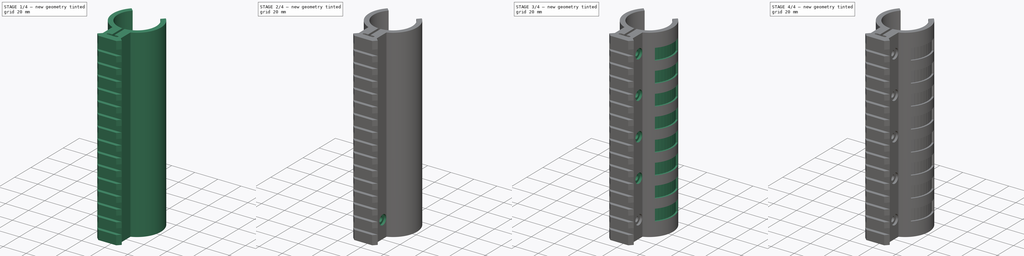
[diagram: build sequence overview — one tinted view per stage of 4, left to right]
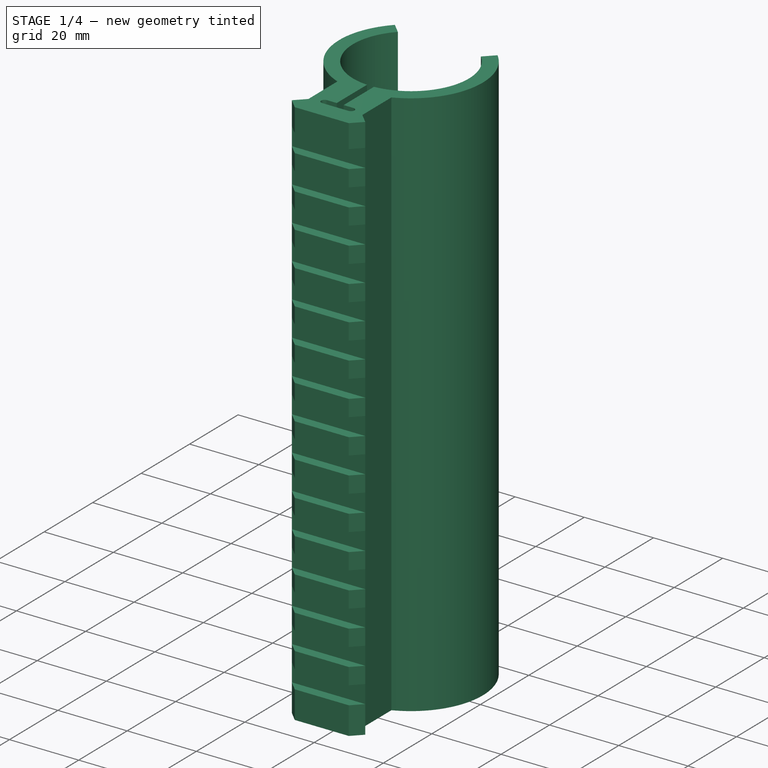
[diagram: stage 1 of 4 — iso view after this stage's code; geometry added in this stage tinted green]
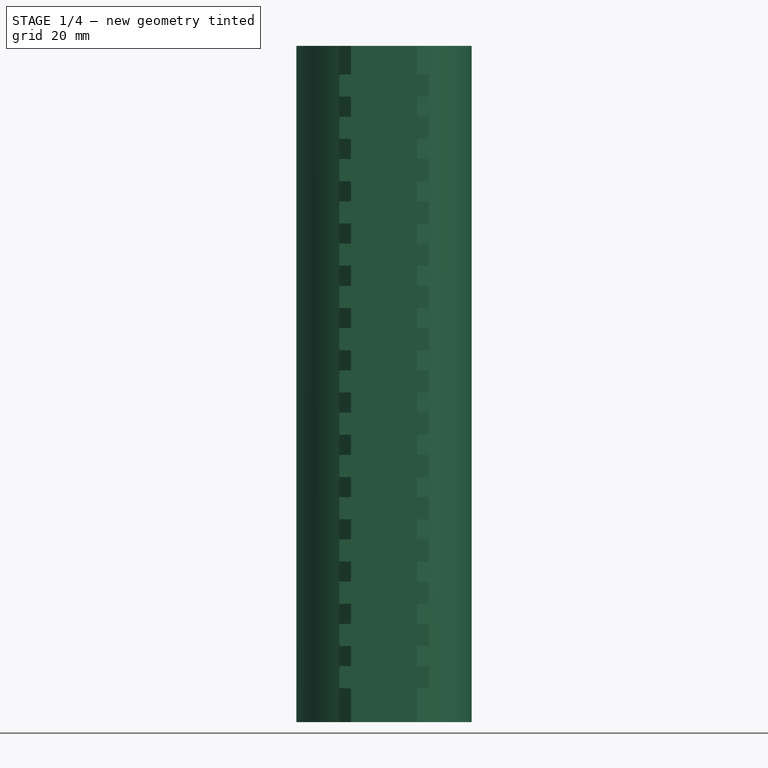
[diagram: stage 1 of 4 — front view after this stage's code; geometry added in this stage tinted green]
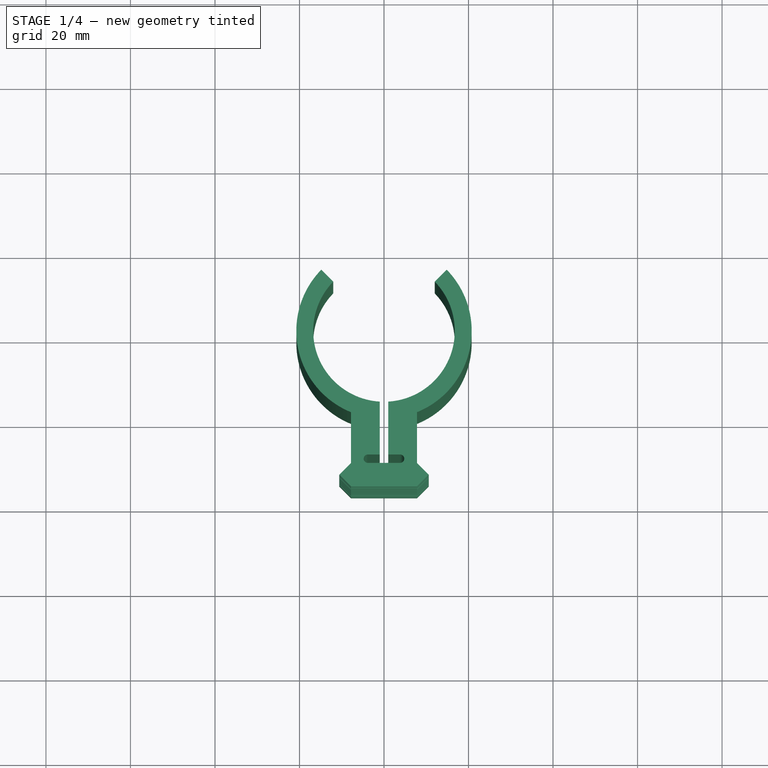
[diagram: stage 1 of 4 — top view after this stage's code; geometry added in this stage tinted green]
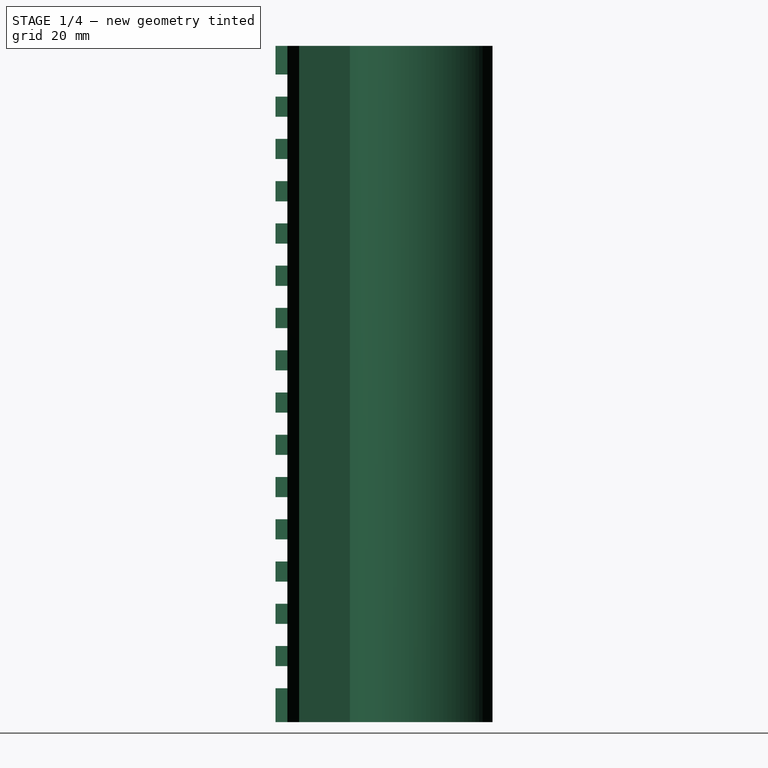
[diagram: stage 1 of 4 — right view after this stage's code; geometry added in this stage tinted green]
FCSTD DOCUMENT  (FreeCAD 0.21R33694 (Git))
Label: handguard_350
License: All rights reserved
LicenseURL: http://en.wikipedia.org/wiki/All_rights_reserved
objects: Sketcher::SketchObject×7, PartDesign::Pocket×6, PartDesign::Plane×2, PartDesign::PolarPattern×2, Spreadsheet::Sheet×1, PartDesign::Pad×1, PartDesign::LinearPattern×1, PartDesign::Body×1
note: 27 computed .brp shape members not serialized (recipe doc carries the construction recipe); baked Part::Feature solids carry a one-line shape summary decoded from their .brp

FEATURE [Spreadsheet::Sheet] Spreadsheet
  cells = A1='Внутренний диаметр; B1=33.5; A2='Толщина стенки цевья; B2=4; A3='Ширина паза в месте стягивания; B3=2; A4='Ширина паза для пропуска корпуса модератора; B4=24; A5='Высота опоры крепления планки; B5=12; A6='Длина цевья; B6=160; A7='Ширина вивера; B7=21.2; A8='Ширина опоры вивера; B8=15.6; A9='Глубина паза вивера; B9=2.8; A10='Ширина паза вивера; B10=5.23; A11='Шаг пазов; B11=10; A12='Отступ первого паза от края; B12=8; A13='Количество пазов; B13==floor((B6 - 2 * B12) / B11); A14='Диаметр отверстия для стяжки; B14=4.5; A15='Расстояние отверстия для стяжки от цевья; B15=4.5; A16='Расстояние отверстия для стажки от торца; B16=15; A17='Число отверстий для стяжки; B17=5; A18='Диапазон отверстий для стяжки; B18==B6 - 2 * B16; A19='Диаметр потая головки болта M4; B19=8.5; A20='Глубина потая головки болта M4; B20=2; A21='Размер потая под гайку М4; B21=7.3; C21='Потай под гайку М4; D21=3; A22='Глубина декоративного паза; B22=2.5; A23='Ширина декоративного паза; B23=10; A24='Отступ декоративного паза от края; B24=12
FEATURE [Sketcher::SketchObject] Sketch
  FullyConstrained = true
  MapMode = 5
  Support = -> [XY_Plane]
  expr: Constraints[12] = Spreadsheet.B1
  expr: Constraints[13] = Spreadsheet.B1 + 2 * Spreadsheet.B2
  expr: Constraints[21] = Spreadsheet.B4
  expr: Constraints[22] = Spreadsheet.B5
  expr: Constraints[29] = Spreadsheet.B7
  expr: Constraints[30] = Spreadsheet.B8
  expr: Constraints[34] = Spreadsheet.B8
  expr: Constraints[36] = Spreadsheet.B3
  sketch-geometry (20):
    g0: LineSegment StartX=-1 StartY=-16.7201 StartZ=0 EndX=-1 EndY=-29.2282 EndZ=0
    g1: LineSegment StartX=1 StartY=-29.2282 StartZ=0 EndX=1 EndY=-16.7201 EndZ=0
    g2: LineSegment StartX=-7.8 StartY=-19.2282 StartZ=0 EndX=-7.8 EndY=-31.2282 EndZ=0
    g3: LineSegment StartX=7.8 StartY=-31.2282 StartZ=0 EndX=7.8 EndY=-19.2282 EndZ=0
    g4: ArcOfCircle CenterX=0 CenterY=0 CenterZ=0 NormalX=0 NormalY=0 NormalZ=1 AngleXU=0 Radius=16.75 StartAngle=2.36945 EndAngle=4.65265
    g5: ArcOfCircle CenterX=0 CenterY=0 CenterZ=0 NormalX=0 NormalY=0 NormalZ=1 AngleXU=0 Radius=20.75 StartAngle=2.3669 EndAngle=4.32702
    g6: ArcOfCircle CenterX=0 CenterY=0 CenterZ=0 NormalX=0 NormalY=0 NormalZ=1 AngleXU=0 Radius=16.75 StartAngle=4.77213 EndAngle=7.05533
    g7: ArcOfCircle CenterX=0 CenterY=0 CenterZ=0 NormalX=0 NormalY=0 NormalZ=1 AngleXU=0 Radius=20.75 StartAngle=5.09776 EndAngle=7.05788
    g8: LineSegment StartX=-12 StartY=11.686 StartZ=0 EndX=-14.8286 EndY=14.5146 EndZ=0
    g9: LineSegment StartX=12 StartY=11.686 StartZ=0 EndX=14.8286 EndY=14.5146 EndZ=0
    g10: LineSegment StartX=-7.8 StartY=-31.2282 StartZ=0 EndX=-10.6 EndY=-34.0282 EndZ=0
    g11: LineSegment StartX=-10.6 StartY=-34.0282 StartZ=0 EndX=-7.8 EndY=-36.8282 EndZ=0
    g12: LineSegment StartX=-7.8 StartY=-36.8282 StartZ=0 EndX=7.8 EndY=-36.8282 EndZ=0
    g13: LineSegment StartX=7.8 StartY=-36.8282 StartZ=0 EndX=10.6 EndY=-34.0282 EndZ=0
    g14: LineSegment StartX=10.6 StartY=-34.0282 StartZ=0 EndX=7.8 EndY=-31.2282 EndZ=0
    g15: LineSegment StartX=1 StartY=-29.2282 StartZ=0 EndX=3.8 EndY=-29.2282 EndZ=0
    g16: LineSegment StartX=-1 StartY=-29.2282 StartZ=0 EndX=-3.8 EndY=-29.2282 EndZ=0
    g17: LineSegment StartX=-3.8 StartY=-31.2282 StartZ=0 EndX=3.8 EndY=-31.2282 EndZ=0
    g18: ArcOfCircle CenterX=3.8 CenterY=-30.2282 CenterZ=0 NormalX=0 NormalY=0 NormalZ=1 AngleXU=0 Radius=1 StartAngle=4.71239 EndAngle=7.85398
    g19: ArcOfCircle CenterX=-3.8 CenterY=-30.2282 CenterZ=0 NormalX=0 NormalY=0 NormalZ=1 AngleXU=0 Radius=1 StartAngle=1.5708 EndAngle=4.71239
  constraints (57):
    c: Vertical(g0)
    c: Vertical(g2)
    c: Vertical(g3)
    c: Equal(g3,g2)
    c: Coincident(g4,g-1)
    c: Coincident(g4,g0)
    c: Coincident(g5,g4)
    c: Coincident(g5,g2)
    c: Coincident(g6,g4)
    c: Coincident(g6,g1)
    c: Coincident(g7,g4)
    c: Coincident(g7,g3)
    c: Diameter(g6) = 33.5
    c: Diameter(g7) = 41.5
    c: Horizontal(g4,g6)
    c: Horizontal(g5,g7)
    c: Coincident(g8,g4)
    c: Coincident(g8,g5)
    c: Coincident(g9,g6)
    c: Coincident(g9,g7)
    c: Angle(g9,g8) = 1.5708
    c: DistanceX(g4,g6) = 24
    c: DistanceY(g2,g2) = 12
    c: Coincident(g11,g10)
    c: Coincident(g11,g12)
    c: Coincident(g13,g14)
    c: Coincident(g13,g12)
    c: Angle(g14,g13) = 1.5708
    c: Symmetric(g11,g12,g-2)
    c: DistanceX(g10,g13) = 21.2
    c: DistanceX(g2,g3) = 15.6
    c: Coincident(g14,g3)
    c: Coincident(g10,g2)
    c: Symmetric(g13,g10,g-2)
    c: DistanceX(g12,g12) = 15.6
    c: Equal(g14,g13)
    c: DistanceX(g0,g1) = 2
    c: Symmetric(g3,g2,g-2)
    c: Symmetric(g0,g1,g-2)
    c: Coincident(g15,g1)
    c: Horizontal(g15)
    c: Coincident(g16,g0)
    c: Horizontal(g16)
    c: Equal(g16,g15)
    c: Horizontal(g17)
    c: Vertical(g17,g15)
    c: Vertical(g17,g16)
    c: Coincident(g18,g17)
    c: Coincident(g18,g15)
    c: Coincident(g19,g16)
    c: Coincident(g19,g17)
    c: Vertical(g17,g19)
    c: Vertical(g17,g18)
    c: Horizontal(g17,g3)
    c: Diameter(g18) = 2
    c: DistanceX(g17,g3) = 4
    c: Symmetric(g0,g1,g-2)
FEATURE [PartDesign::Pad] Pad
  Direction = (0,0,1)
  Length = 160
  Length2 = 10
  Profile = -> Sketch
  ReferenceAxis = -> Sketch [N_Axis]
  Type = 0
  expr: Length = Spreadsheet.B6
FEATURE [Sketcher::SketchObject] Sketch001
  ExternalGeometry = -> [Pad]
  FullyConstrained = true
  MapMode = 5
  Placement = pos=(0,0,0) rot=(0.57735,0.57735,0.57735;2.0944rad)
  Support = -> [YZ_Plane]
  expr: Constraints[207] = Spreadsheet.B12
  expr: Constraints[22] = Spreadsheet.B11
  expr: Constraints[8] = Spreadsheet.B9
  expr: Constraints[9] = Spreadsheet.B10
  sketch-geometry (74):
    g0: LineSegment StartX=-36.8282 StartY=8 StartZ=0 EndX=-34.0282 EndY=8 EndZ=0
    g1: LineSegment StartX=-34.0282 StartY=8 StartZ=0 EndX=-34.0282 EndY=13.23 EndZ=0
    g2: LineSegment StartX=-34.0282 StartY=13.23 StartZ=0 EndX=-36.8282 EndY=13.23 EndZ=0
    g3: LineSegment StartX=-36.8282 StartY=13.23 StartZ=0 EndX=-36.8282 EndY=8 EndZ=0
    g4: LineSegment StartX=-36.8282 StartY=18 StartZ=0 EndX=-34.0282 EndY=18 EndZ=0
    g5: LineSegment StartX=-34.0282 StartY=18 StartZ=0 EndX=-34.0282 EndY=23.23 EndZ=0
    g6: LineSegment StartX=-34.0282 StartY=23.23 StartZ=0 EndX=-36.8282 EndY=23.23 EndZ=0
    g7: LineSegment StartX=-36.8282 StartY=23.23 StartZ=0 EndX=-36.8282 EndY=18 EndZ=0
    g8: LineSegment StartX=-36.8282 StartY=8 StartZ=0 EndX=-36.8282 EndY=18 EndZ=0
    g9: LineSegment StartX=-36.8282 StartY=28 StartZ=0 EndX=-34.0282 EndY=28 EndZ=0
    g10: LineSegment StartX=-34.0282 StartY=28 StartZ=0 EndX=-34.0282 EndY=33.23 EndZ=0
    g11: LineSegment StartX=-34.0282 StartY=33.23 StartZ=0 EndX=-36.8282 EndY=33.23 EndZ=0
    g12: LineSegment StartX=-36.8282 StartY=33.23 StartZ=0 EndX=-36.8282 EndY=28 EndZ=0
    g13: LineSegment StartX=-36.8282 StartY=18 StartZ=0 EndX=-36.8282 EndY=28 EndZ=0
    g14: LineSegment StartX=-36.8282 StartY=38 StartZ=0 EndX=-34.0282 EndY=38 EndZ=0
    g15: LineSegment StartX=-34.0282 StartY=38 StartZ=0 EndX=-34.0282 EndY=43.23 EndZ=0
    g16: LineSegment StartX=-34.0282 StartY=43.23 StartZ=0 EndX=-36.8282 EndY=43.23 EndZ=0
    g17: LineSegment StartX=-36.8282 StartY=43.23 StartZ=0 EndX=-36.8282 EndY=38 EndZ=0
    g18: LineSegment StartX=-36.8282 StartY=28 StartZ=0 EndX=-36.8282 EndY=38 EndZ=0
    g19: LineSegment StartX=-36.8282 StartY=48 StartZ=0 EndX=-34.0282 EndY=48 EndZ=0
    g20: LineSegment StartX=-34.0282 StartY=48 StartZ=0 EndX=-34.0282 EndY=53.23 EndZ=0
    g21: LineSegment StartX=-34.0282 StartY=53.23 StartZ=0 EndX=-36.8282 EndY=53.23 EndZ=0
    g22: LineSegment StartX=-36.8282 StartY=53.23 StartZ=0 EndX=-36.8282 EndY=48 EndZ=0
    g23: LineSegment StartX=-36.8282 StartY=38 StartZ=0 EndX=-36.8282 EndY=48 EndZ=0
    g24: LineSegment StartX=-36.8282 StartY=58 StartZ=0 EndX=-34.0282 EndY=58 EndZ=0
    g25: LineSegment StartX=-34.0282 StartY=58 StartZ=0 EndX=-34.0282 EndY=63.23 EndZ=0
    g26: LineSegment StartX=-34.0282 StartY=63.23 StartZ=0 EndX=-36.8282 EndY=63.23 EndZ=0
    g27: LineSegment StartX=-36.8282 StartY=63.23 StartZ=0 EndX=-36.8282 EndY=58 EndZ=0
    g28: LineSegment StartX=-36.8282 StartY=48 StartZ=0 EndX=-36.8282 EndY=58 EndZ=0
    g29: LineSegment StartX=-36.8282 StartY=68 StartZ=0 EndX=-34.0282 EndY=68 EndZ=0
    g30: LineSegment StartX=-34.0282 StartY=68 StartZ=0 EndX=-34.0282 EndY=73.23 EndZ=0
    g31: LineSegment StartX=-34.0282 StartY=73.23 StartZ=0 EndX=-36.8282 EndY=73.23 EndZ=0
    g32: LineSegment StartX=-36.8282 StartY=73.23 StartZ=0 EndX=-36.8282 EndY=68 EndZ=0
    g33: LineSegment StartX=-36.8282 StartY=58 StartZ=0 EndX=-36.8282 EndY=68 EndZ=0
    g34: LineSegment StartX=-36.8282 StartY=78 StartZ=0 EndX=-34.0282 EndY=78 EndZ=0
    g35: LineSegment StartX=-34.0282 StartY=78 StartZ=0 EndX=-34.0282 EndY=83.23 EndZ=0
    g36: LineSegment StartX=-34.0282 StartY=83.23 StartZ=0 EndX=-36.8282 EndY=83.23 EndZ=0
    g37: LineSegment StartX=-36.8282 StartY=83.23 StartZ=0 EndX=-36.8282 EndY=78 EndZ=0
    g38: LineSegment StartX=-36.8282 StartY=68 StartZ=0 EndX=-36.8282 EndY=78 EndZ=0
    g39: LineSegment StartX=-36.8282 StartY=88 StartZ=0 EndX=-34.0282 EndY=88 EndZ=0
    g40: LineSegment StartX=-34.0282 StartY=88 StartZ=0 EndX=-34.0282 EndY=93.23 EndZ=0
    g41: LineSegment StartX=-34.0282 StartY=93.23 StartZ=0 EndX=-36.8282 EndY=93.23 EndZ=0
    g42: LineSegment StartX=-36.8282 StartY=93.23 StartZ=0 EndX=-36.8282 EndY=88 EndZ=0
    g43: LineSegment StartX=-36.8282 StartY=78 StartZ=0 EndX=-36.8282 EndY=88 EndZ=0
    g44: LineSegment StartX=-36.8282 StartY=98 StartZ=0 EndX=-34.0282 EndY=98 EndZ=0
    g45: LineSegment StartX=-34.0282 StartY=98 StartZ=0 EndX=-34.0282 EndY=103.23 EndZ=0
    g46: LineSegment StartX=-34.0282 StartY=103.23 StartZ=0 EndX=-36.8282 EndY=103.23 EndZ=0
    g47: LineSegment StartX=-36.8282 StartY=103.23 StartZ=0 EndX=-36.8282 EndY=98 EndZ=0
    g48: LineSegment StartX=-36.8282 StartY=88 StartZ=0 EndX=-36.8282 EndY=98 EndZ=0
    g49: LineSegment StartX=-36.8282 StartY=108 StartZ=0 EndX=-34.0282 EndY=108 EndZ=0
    g50: LineSegment StartX=-34.0282 StartY=108 StartZ=0 EndX=-34.0282 EndY=113.23 EndZ=0
    g51: LineSegment StartX=-34.0282 StartY=113.23 StartZ=0 EndX=-36.8282 EndY=113.23 EndZ=0
    g52: LineSegment StartX=-36.8282 StartY=113.23 StartZ=0 EndX=-36.8282 EndY=108 EndZ=0
    g53: LineSegment StartX=-36.8282 StartY=98 StartZ=0 EndX=-36.8282 EndY=108 EndZ=0
    g54: LineSegment StartX=-36.8282 StartY=118 StartZ=0 EndX=-34.0282 EndY=118 EndZ=0
    g55: LineSegment StartX=-34.0282 StartY=118 StartZ=0 EndX=-34.0282 EndY=123.23 EndZ=0
    g56: LineSegment StartX=-34.0282 StartY=123.23 StartZ=0 EndX=-36.8282 EndY=123.23 EndZ=0
    g57: LineSegment StartX=-36.8282 StartY=123.23 StartZ=0 EndX=-36.8282 EndY=118 EndZ=0
    g58: LineSegment StartX=-36.8282 StartY=108 StartZ=0 EndX=-36.8282 EndY=118 EndZ=0
    g59: LineSegment StartX=-36.8282 StartY=128 StartZ=0 EndX=-34.0282 EndY=128 EndZ=0
    g60: LineSegment StartX=-34.0282 StartY=128 StartZ=0 EndX=-34.0282 EndY=133.23 EndZ=0
    g61: LineSegment StartX=-34.0282 StartY=133.23 StartZ=0 EndX=-36.8282 EndY=133.23 EndZ=0
    g62: LineSegment StartX=-36.8282 StartY=133.23 StartZ=0 EndX=-36.8282 EndY=128 EndZ=0
    g63: LineSegment StartX=-36.8282 StartY=118 StartZ=0 EndX=-36.8282 EndY=128 EndZ=0
    g64: LineSegment StartX=-36.8282 StartY=138 StartZ=0 EndX=-34.0282 EndY=138 EndZ=0
    g65: LineSegment StartX=-34.0282 StartY=138 StartZ=0 EndX=-34.0282 EndY=143.23 EndZ=0
    g66: LineSegment StartX=-34.0282 StartY=143.23 StartZ=0 EndX=-36.8282 EndY=143.23 EndZ=0
    g67: LineSegment StartX=-36.8282 StartY=143.23 StartZ=0 EndX=-36.8282 EndY=138 EndZ=0
    g68: LineSegment StartX=-36.8282 StartY=128 StartZ=0 EndX=-36.8282 EndY=138 EndZ=0
    g69: LineSegment StartX=-36.8282 StartY=148 StartZ=0 EndX=-34.0282 EndY=148 EndZ=0
    g70: LineSegment StartX=-34.0282 StartY=148 StartZ=0 EndX=-34.0282 EndY=153.23 EndZ=0
    g71: LineSegment StartX=-34.0282 StartY=153.23 StartZ=0 EndX=-36.8282 EndY=153.23 EndZ=0
    g72: LineSegment StartX=-36.8282 StartY=153.23 StartZ=0 EndX=-36.8282 EndY=148 EndZ=0
    g73: LineSegment StartX=-36.8282 StartY=138 StartZ=0 EndX=-36.8282 EndY=148 EndZ=0
  constraints (208):
    c: Coincident(g0,g1)
    c: Coincident(g1,g2)
    c: Coincident(g2,g3)
    c: Coincident(g3,g0)
    c: Horizontal(g0)
    c: Horizontal(g2)
    c: Vertical(g1)
    c: Vertical(g3)
    c: DistanceX(g0,g0) = 2.8
    c: DistanceY(g1,g1) = 5.23
    c: Coincident(g4,g5)
    c: Coincident(g5,g6)
    c: Coincident(g6,g7)
    c: Coincident(g7,g4)
    c: Horizontal(g4)
    c: Horizontal(g6)
    c: Vertical(g5)
    c: Vertical(g7)
    c: Equal(g0,g4) = 2.8
    c: Equal(g1,g5) = 5.23
    c: Coincident(g0,g8)
    c: Coincident(g4,g8)
    c: Distance(g8) = 10
    c: Angle(g8) = 1.5708
    c: Coincident(g9,g10)
    c: Coincident(g10,g11)
    c: Coincident(g11,g12)
    c: Coincident(g12,g9)
    c: Horizontal(g9)
    c: Horizontal(g11)
    c: Vertical(g10)
    c: Vertical(g12)
    c: Equal(g0,g9) = 2.8
    c: Equal(g1,g10) = 5.23
    c: Coincident(g4,g13)
    c: Coincident(g9,g13)
    c: Equal(g8,g13)
    c: Parallel(g13,g8)
    c: Coincident(g14,g15)
    c: Coincident(g15,g16)
    c: Coincident(g16,g17)
    c: Coincident(g17,g14)
    c: Horizontal(g14)
    c: Horizontal(g16)
    c: Vertical(g15)
    c: Vertical(g17)
    c: Equal(g0,g14) = 2.8
    c: Equal(g1,g15) = 5.23
    c: Coincident(g9,g18)
    c: Coincident(g14,g18)
    c: Equal(g8,g18)
    c: Parallel(g18,g8)
    c: Coincident(g19,g20)
    c: Coincident(g20,g21)
    c: Coincident(g21,g22)
    c: Coincident(g22,g19)
    c: Horizontal(g19)
    c: Horizontal(g21)
    c: Vertical(g20)
    c: Vertical(g22)
    c: Equal(g0,g19) = 2.8
    c: Equal(g1,g20) = 5.23
    c: Coincident(g14,g23)
    c: Coincident(g19,g23)
    c: Equal(g8,g23)
    c: Parallel(g23,g8)
    c: Coincident(g24,g25)
    c: Coincident(g25,g26)
    c: Coincident(g26,g27)
    c: Coincident(g27,g24)
    c: Horizontal(g24)
    c: Horizontal(g26)
    c: Vertical(g25)
    c: Vertical(g27)
    c: Equal(g0,g24) = 2.8
    c: Equal(g1,g25) = 5.23
    c: Coincident(g19,g28)
    c: Coincident(g24,g28)
    c: Equal(g8,g28)
    c: Parallel(g28,g8)
    c: Coincident(g29,g30)
    c: Coincident(g30,g31)
    c: Coincident(g31,g32)
    c: Coincident(g32,g29)
    c: Horizontal(g29)
    c: Horizontal(g31)
    c: Vertical(g30)
    c: Vertical(g32)
    c: Equal(g0,g29) = 2.8
    c: Equal(g1,g30) = 5.23
    c: Coincident(g24,g33)
    c: Coincident(g29,g33)
    c: Equal(g8,g33)
    c: Parallel(g33,g8)
    c: Coincident(g34,g35)
    c: Coincident(g35,g36)
    c: Coincident(g36,g37)
    c: Coincident(g37,g34)
    c: Horizontal(g34)
    c: Horizontal(g36)
    c: Vertical(g35)
    c: Vertical(g37)
    c: Equal(g0,g34) = 2.8
    c: Equal(g1,g35) = 5.23
    c: Coincident(g29,g38)
    c: Coincident(g34,g38)
    c: Equal(g8,g38)
    c: Parallel(g38,g8)
    c: Coincident(g39,g40)
    c: Coincident(g40,g41)
    c: Coincident(g41,g42)
    c: Coincident(g42,g39)
    c: Horizontal(g39)
    c: Horizontal(g41)
    c: Vertical(g40)
    c: Vertical(g42)
    c: Equal(g0,g39) = 2.8
    c: Equal(g1,g40) = 5.23
    c: Coincident(g34,g43)
    c: Coincident(g39,g43)
    c: Equal(g8,g43)
    c: Parallel(g43,g8)
    c: Coincident(g44,g45)
    c: Coincident(g45,g46)
    c: Coincident(g46,g47)
    c: Coincident(g47,g44)
    c: Horizontal(g44)
    c: Horizontal(g46)
    c: Vertical(g45)
    c: Vertical(g47)
    c: Equal(g0,g44) = 2.8
    c: Equal(g1,g45) = 5.23
    c: Coincident(g39,g48)
    c: Coincident(g44,g48)
    c: Equal(g8,g48)
    c: Parallel(g48,g8)
    c: Coincident(g49,g50)
    c: Coincident(g50,g51)
    c: Coincident(g51,g52)
    c: Coincident(g52,g49)
    c: Horizontal(g49)
    c: Horizontal(g51)
    c: Vertical(g50)
    c: Vertical(g52)
    c: Equal(g0,g49) = 2.8
    c: Equal(g1,g50) = 5.23
    c: Coincident(g44,g53)
    c: Coincident(g49,g53)
    c: Equal(g8,g53)
    c: Parallel(g53,g8)
    c: Coincident(g54,g55)
    c: Coincident(g55,g56)
    c: Coincident(g56,g57)
    c: Coincident(g57,g54)
    c: Horizontal(g54)
    c: Horizontal(g56)
    c: Vertical(g55)
    c: Vertical(g57)
    c: Equal(g0,g54) = 2.8
    c: Equal(g1,g55) = 5.23
    c: Coincident(g49,g58)
    c: Coincident(g54,g58)
    c: Equal(g8,g58)
    c: Parallel(g58,g8)
    c: Coincident(g59,g60)
    c: Coincident(g60,g61)
    c: Coincident(g61,g62)
    c: Coincident(g62,g59)
    c: Horizontal(g59)
    c: Horizontal(g61)
    c: Vertical(g60)
    c: Vertical(g62)
    c: Equal(g0,g59) = 2.8
    c: Equal(g1,g60) = 5.23
    c: Coincident(g54,g63)
    c: Coincident(g59,g63)
    c: Equal(g8,g63)
    c: Parallel(g63,g8)
    c: Coincident(g64,g65)
    c: Coincident(g65,g66)
    c: Coincident(g66,g67)
    c: Coincident(g67,g64)
    c: Horizontal(g64)
    c: Horizontal(g66)
    c: Vertical(g65)
    c: Vertical(g67)
    c: Equal(g0,g64) = 2.8
    c: Equal(g1,g65) = 5.23
    c: Coincident(g59,g68)
    c: Coincident(g64,g68)
    c: Equal(g8,g68)
    c: Parallel(g68,g8)
    c: Coincident(g69,g70)
    c: Coincident(g70,g71)
    c: Coincident(g71,g72)
    c: Coincident(g72,g69)
    c: Horizontal(g69)
    c: Horizontal(g71)
    c: Vertical(g70)
    c: Vertical(g72)
    c: Equal(g0,g69) = 2.8
    c: Equal(g1,g70) = 5.23
    c: Coincident(g64,g73)
    c: Coincident(g69,g73)
    c: Equal(g8,g73)
    c: Parallel(g73,g8)
    c: Vertical(g0,g-3)
    c: DistanceY(g-3,g0) = 8
FEATURE [PartDesign::Pocket] Pocket
  BaseFeature = -> Pad
  Direction = (-1,2e-16,-3e-16)
  Length = 5
  Length2 = 5
  Midplane = true
  Profile = -> Sketch001
  ReferenceAxis = -> Sketch001 [N_Axis]
  Type = 1
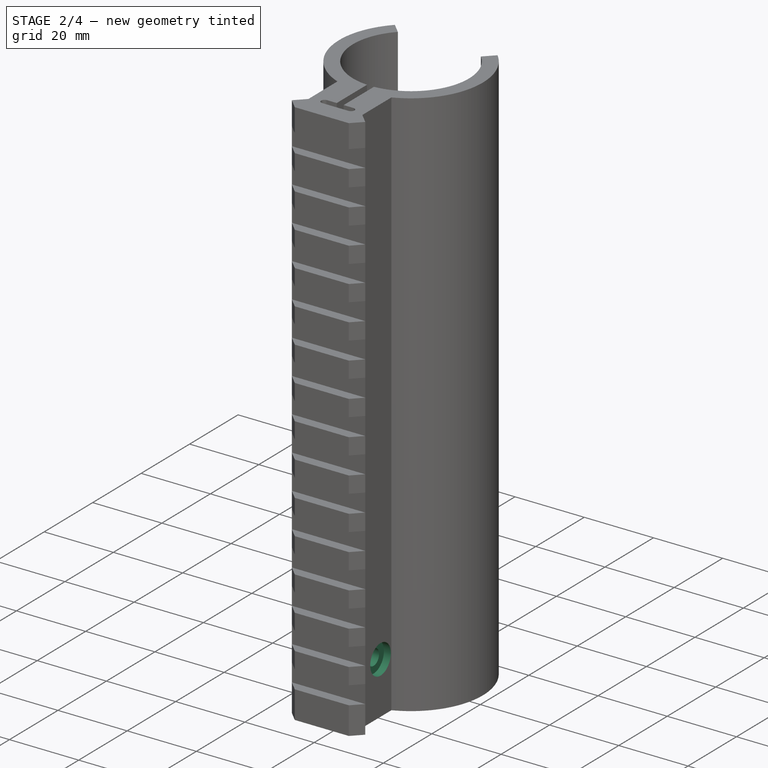
[diagram: stage 2 of 4 — iso view after this stage's code; geometry added in this stage tinted green]
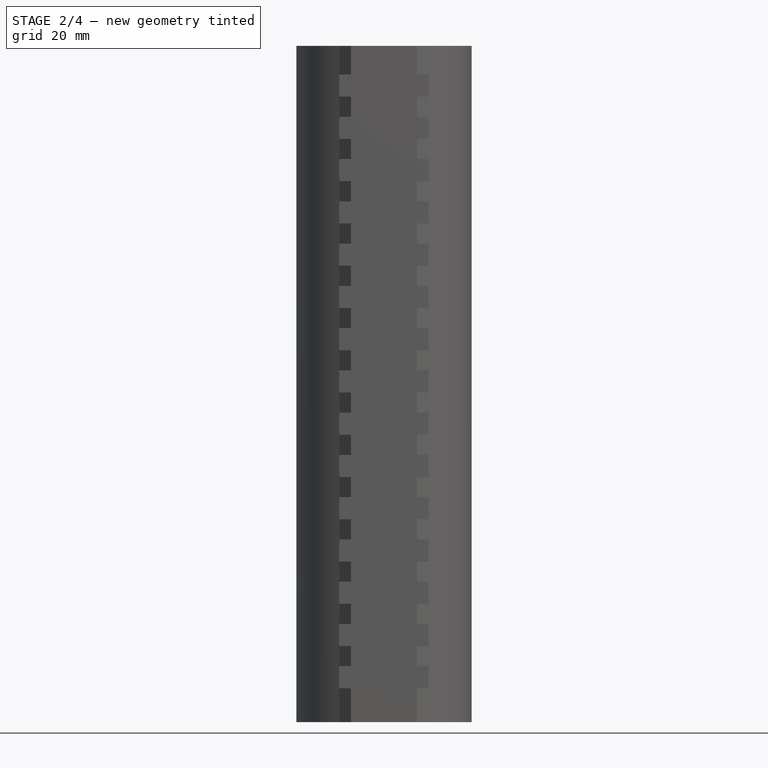
[diagram: stage 2 of 4 — front view after this stage's code; geometry added in this stage tinted green]
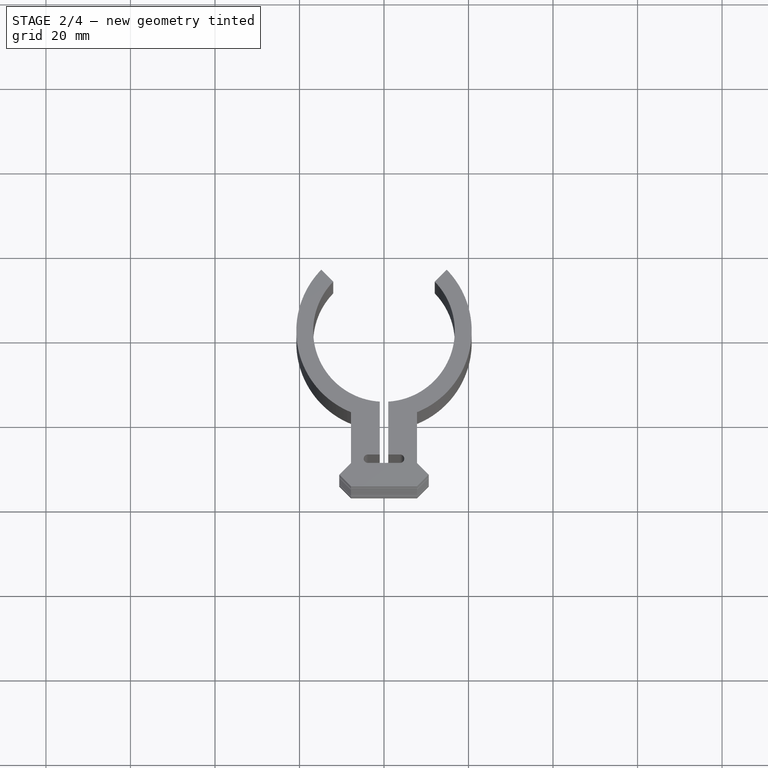
[diagram: stage 2 of 4 — top view after this stage's code; geometry added in this stage tinted green]
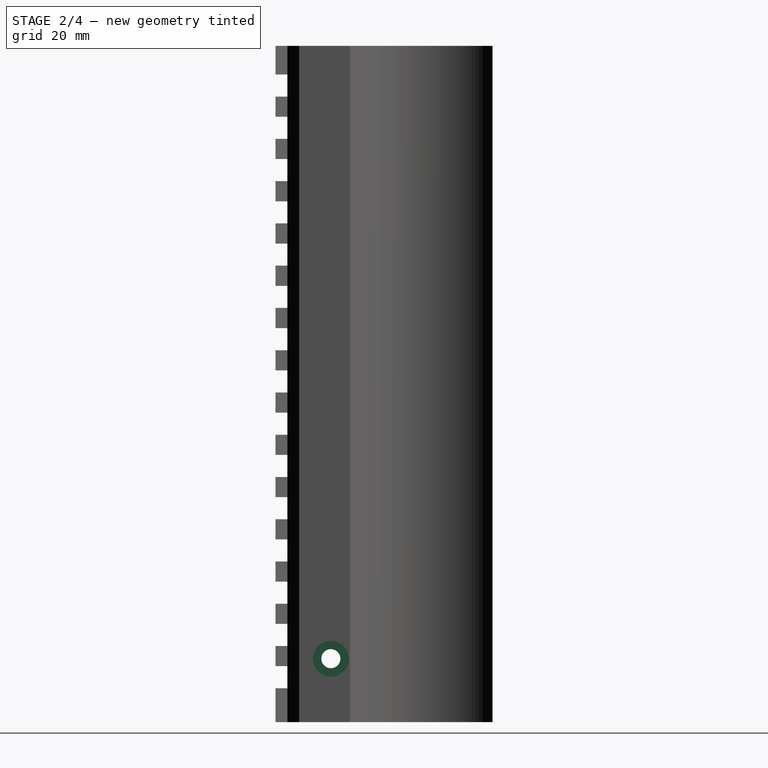
[diagram: stage 2 of 4 — right view after this stage's code; geometry added in this stage tinted green]
FEATURE [Sketcher::SketchObject] Sketch002
  ExternalGeometry = -> [Pocket]
  FullyConstrained = true
  MapMode = 5
  Placement = pos=(1,-4e-16,0) rot=(-0.57735,0.57735,0.57735;4.18879rad)
  Support = -> [Pocket]
  expr: Constraints[0] = Spreadsheet.B14
  expr: Constraints[1] = Spreadsheet.B15
  expr: Constraints[2] = Spreadsheet.B16
  sketch-geometry (1):
    g0: Circle CenterX=23.7282 CenterY=15 CenterZ=0 NormalX=0 NormalY=0 NormalZ=1 AngleXU=0 Radius=2.25
  constraints (3):
    c: Diameter(g0) = 4.5
    c: DistanceX(g-3,g0) = 4.5
    c: DistanceY(g-3,g0) = 15
FEATURE [PartDesign::Pocket] Pocket001
  BaseFeature = -> Pocket
  Direction = (1,-4e-16,0)
  Length = 20
  Length2 = 20
  Profile = -> Sketch002
  ReferenceAxis = -> Sketch002 [N_Axis]
  Type = 4
FEATURE [Sketcher::SketchObject] Sketch004
  ExternalGeometry = -> [Pocket001]
  FullyConstrained = true
  MapMode = 5
  Placement = pos=(-7.8,0,0) rot=(0.57735,-0.57735,-0.57735;2.0944rad)
  Support = -> [Pocket001]
  expr: Constraints[18] = Spreadsheet.B21
  sketch-geometry (7):
    g0: LineSegment StartX=27.3782 StartY=12.8927 StartZ=0 EndX=27.3782 EndY=17.1073 EndZ=0
    g1: LineSegment StartX=27.3782 StartY=17.1073 StartZ=0 EndX=23.7282 EndY=19.2147 EndZ=0
    g2: LineSegment StartX=23.7282 StartY=19.2147 StartZ=0 EndX=20.0782 EndY=17.1073 EndZ=0
    g3: LineSegment StartX=20.0782 StartY=17.1073 StartZ=0 EndX=20.0782 EndY=12.8927 EndZ=0
    g4: LineSegment StartX=20.0782 StartY=12.8927 StartZ=0 EndX=23.7282 EndY=10.7853 EndZ=0
    g5: LineSegment StartX=23.7282 StartY=10.7853 StartZ=0 EndX=27.3782 EndY=12.8927 EndZ=0
    g6: Circle CenterX=23.7282 CenterY=15 CenterZ=0 NormalX=0 NormalY=0 NormalZ=1 AngleXU=0 Radius=4.21466
  constraints (16):
    c: Coincident(g0,g1)
    c: Coincident(g1,g2)
    c: Coincident(g2,g3)
    c: Coincident(g3,g4)
    c: Coincident(g4,g5)
    c: Coincident(g5,g0)
    c: Equal(g0, g1-g5) x5
    c: PointOnObject(g0,g6)
    c: PointOnObject(g1,g6)
    c: PointOnObject(g2,g6)
    c: PointOnObject(g3,g6)
    c: PointOnObject(g4,g6)
    c: PointOnObject(g5,g6)
    c: Horizontal(g3,g0)
    c: DistanceX(g3,g0) = 7.3
    c: Coincident(g6,g-4)
FEATURE [PartDesign::Pocket] Pocket003
  BaseFeature = -> Pocket001
  Direction = (1,0,0)
  Length = 3
  Length2 = 5
  Profile = -> Sketch004
  ReferenceAxis = -> Sketch004 [N_Axis]
  Type = 0
  expr: Length = Spreadsheet.D21
FEATURE [Sketcher::SketchObject] Sketch005
  ExternalGeometry = -> [Pocket003]
  FullyConstrained = true
  MapMode = 5
  Placement = pos=(7.8,0,0) rot=(0.57735,0.57735,0.57735;2.0944rad)
  Support = -> [Pocket003]
  expr: Constraints[0] = Spreadsheet.B19
  sketch-geometry (1):
    g0: Circle CenterX=-23.7282 CenterY=15 CenterZ=0 NormalX=0 NormalY=0 NormalZ=1 AngleXU=0 Radius=4.25
  constraints (2):
    c: Diameter(g0) = 8.5
    c: Coincident(g0,g-4)
FEATURE [PartDesign::Pocket] Pocket004
  BaseFeature = -> Pocket003
  Direction = (-1,0,0)
  Length = 2
  Length2 = 5
  Profile = -> Sketch005
  ReferenceAxis = -> Sketch005 [N_Axis]
  Type = 0
  expr: Length = Spreadsheet.B20
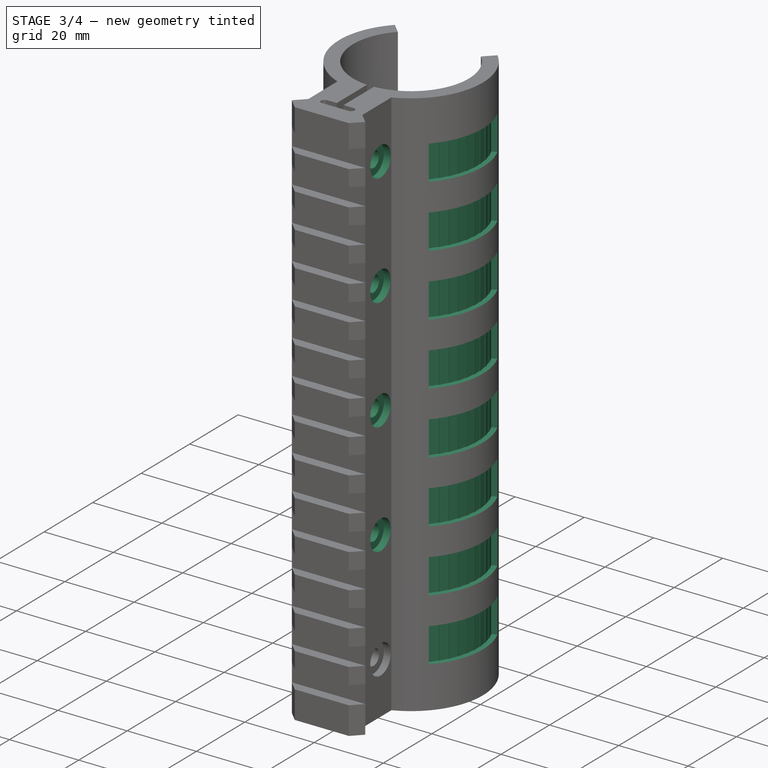
[diagram: stage 3 of 4 — iso view after this stage's code; geometry added in this stage tinted green]
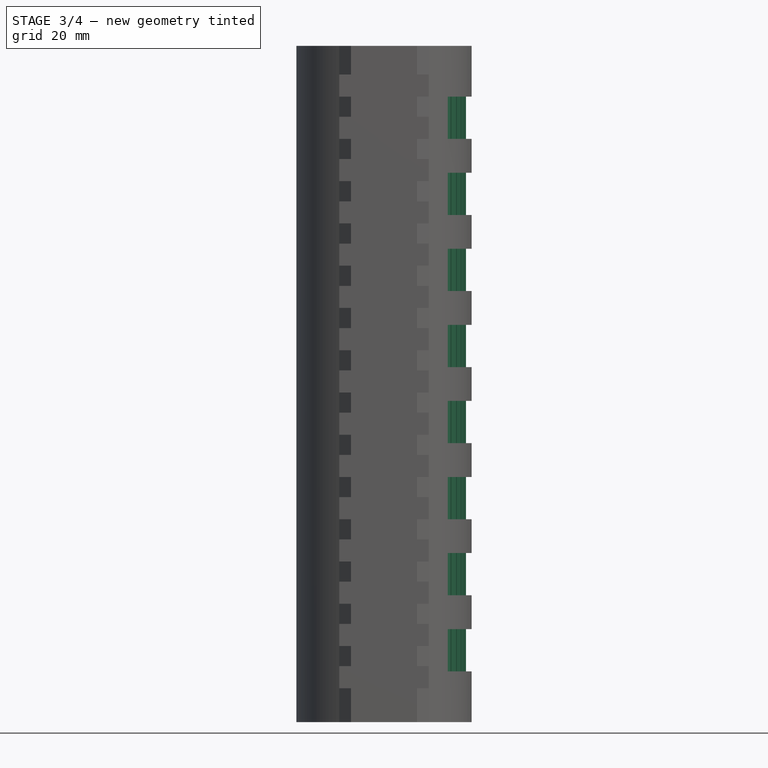
[diagram: stage 3 of 4 — front view after this stage's code; geometry added in this stage tinted green]
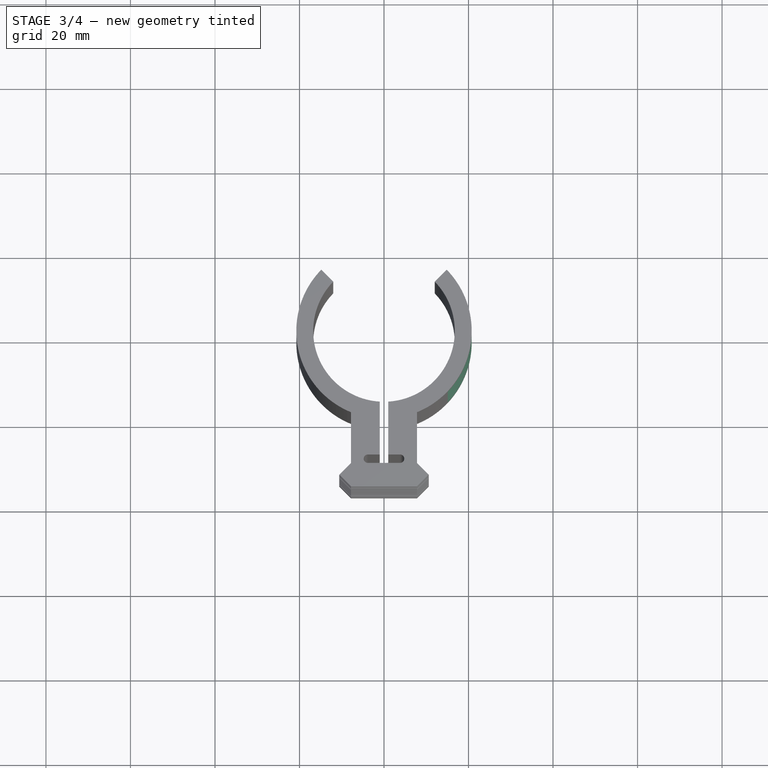
[diagram: stage 3 of 4 — top view after this stage's code; geometry added in this stage tinted green]
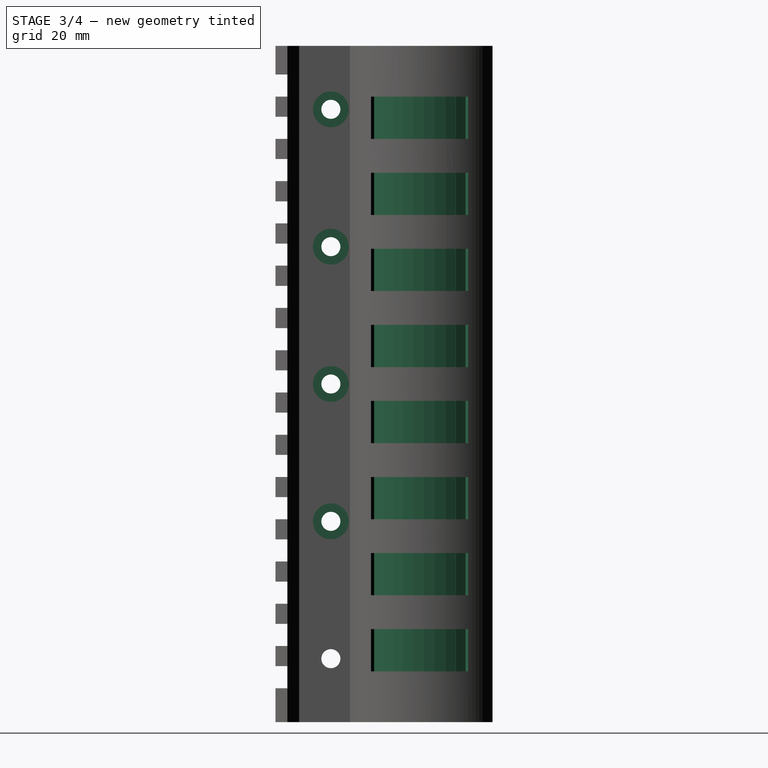
[diagram: stage 3 of 4 — right view after this stage's code; geometry added in this stage tinted green]
FEATURE [PartDesign::LinearPattern] LinearPattern
  BaseFeature = -> Pocket004
  Direction = -> Z_Axis
  Length = 130
  Occurrences = 5
  Originals = -> [Pocket004,Pocket003,Pocket001]
  expr: Length = Spreadsheet.B18
  expr: Occurrences = Spreadsheet.B17
FEATURE [PartDesign::Plane] DatumPlane
  AttachmentOffset = pos=(0,0,0) rot=(0.954201,-0.211541,-0.211541;1.61766rad)
  Length = 94.4384
  MapMode = 5
  Placement = pos=(0,0,0) rot=(0.954201,0.211541,-0.211541;4.66553rad)
  ResizeMode = 0
  Support = -> [LinearPattern]
  Width = 207.993
FEATURE [Sketcher::SketchObject] Sketch006
  ExternalGeometry = -> [LinearPattern]
  FullyConstrained = true
  MapMode = 5
  Placement = pos=(0,0,0) rot=(-0.954201,-0.211541,0.211541;1.61766rad)
  Support = -> [DatumPlane]
  expr: Constraints[109] = Spreadsheet.B24
  expr: Constraints[8] = Spreadsheet.B22
  expr: Constraints[9] = Spreadsheet.B23
  sketch-geometry (39):
    g0: LineSegment StartX=21.75 StartY=-12 StartZ=0 EndX=19.25 EndY=-12 EndZ=0
    g1: LineSegment StartX=19.25 StartY=-12 StartZ=0 EndX=19.25 EndY=-22 EndZ=0
    g2: LineSegment StartX=19.25 StartY=-22 StartZ=0 EndX=21.75 EndY=-22 EndZ=0
    g3: LineSegment StartX=21.75 StartY=-22 StartZ=0 EndX=21.75 EndY=-12 EndZ=0
    g4: LineSegment StartX=19.25 StartY=-30 StartZ=0 EndX=21.75 EndY=-30 EndZ=0
    g5: LineSegment StartX=21.75 StartY=-30 StartZ=0 EndX=21.75 EndY=-40 EndZ=0
    g6: LineSegment StartX=21.75 StartY=-40 StartZ=0 EndX=19.25 EndY=-40 EndZ=0
    g7: LineSegment StartX=19.25 StartY=-40 StartZ=0 EndX=19.25 EndY=-30 EndZ=0
    g8: LineSegment StartX=19.25 StartY=-12 StartZ=0 EndX=19.25 EndY=-30 EndZ=0
    g9: LineSegment StartX=19.25 StartY=-48 StartZ=0 EndX=21.75 EndY=-48 EndZ=0
    g10: LineSegment StartX=21.75 StartY=-48 StartZ=0 EndX=21.75 EndY=-58 EndZ=0
    g11: LineSegment StartX=21.75 StartY=-58 StartZ=0 EndX=19.25 EndY=-58 EndZ=0
    g12: LineSegment StartX=19.25 StartY=-58 StartZ=0 EndX=19.25 EndY=-48 EndZ=0
    g13: LineSegment StartX=19.25 StartY=-30 StartZ=0 EndX=19.25 EndY=-48 EndZ=0
    g14: LineSegment StartX=19.25 StartY=-66 StartZ=0 EndX=21.75 EndY=-66 EndZ=0
    g15: LineSegment StartX=21.75 StartY=-66 StartZ=0 EndX=21.75 EndY=-76 EndZ=0
    g16: LineSegment StartX=21.75 StartY=-76 StartZ=0 EndX=19.25 EndY=-76 EndZ=0
    g17: LineSegment StartX=19.25 StartY=-76 StartZ=0 EndX=19.25 EndY=-66 EndZ=0
    g18: LineSegment StartX=19.25 StartY=-48 StartZ=0 EndX=19.25 EndY=-66 EndZ=0
    g19: LineSegment StartX=19.25 StartY=-84 StartZ=0 EndX=21.75 EndY=-84 EndZ=0
    g20: LineSegment StartX=21.75 StartY=-84 StartZ=0 EndX=21.75 EndY=-94 EndZ=0
    g21: LineSegment StartX=21.75 StartY=-94 StartZ=0 EndX=19.25 EndY=-94 EndZ=0
    g22: LineSegment StartX=19.25 StartY=-94 StartZ=0 EndX=19.25 EndY=-84 EndZ=0
    g23: LineSegment StartX=19.25 StartY=-66 StartZ=0 EndX=19.25 EndY=-84 EndZ=0
    g24: LineSegment StartX=19.25 StartY=-102 StartZ=0 EndX=21.75 EndY=-102 EndZ=0
    g25: LineSegment StartX=21.75 StartY=-102 StartZ=0 EndX=21.75 EndY=-112 EndZ=0
    g26: LineSegment StartX=21.75 StartY=-112 StartZ=0 EndX=19.25 EndY=-112 EndZ=0
    g27: LineSegment StartX=19.25 StartY=-112 StartZ=0 EndX=19.25 EndY=-102 EndZ=0
    g28: LineSegment StartX=19.25 StartY=-84 StartZ=0 EndX=19.25 EndY=-102 EndZ=0
    g29: LineSegment StartX=19.25 StartY=-120 StartZ=0 EndX=21.75 EndY=-120 EndZ=0
    g30: LineSegment StartX=21.75 StartY=-120 StartZ=0 EndX=21.75 EndY=-130 EndZ=0
    g31: LineSegment StartX=21.75 StartY=-130 StartZ=0 EndX=19.25 EndY=-130 EndZ=0
    g32: LineSegment StartX=19.25 StartY=-130 StartZ=0 EndX=19.25 EndY=-120 EndZ=0
    g33: LineSegment StartX=19.25 StartY=-102 StartZ=0 EndX=19.25 EndY=-120 EndZ=0
    g34: LineSegment StartX=19.25 StartY=-138 StartZ=0 EndX=21.75 EndY=-138 EndZ=0
    g35: LineSegment StartX=21.75 StartY=-138 StartZ=0 EndX=21.75 EndY=-148 EndZ=0
    g36: LineSegment StartX=21.75 StartY=-148 StartZ=0 EndX=19.25 EndY=-148 EndZ=0
    g37: LineSegment StartX=19.25 StartY=-148 StartZ=0 EndX=19.25 EndY=-138 EndZ=0
    g38: LineSegment StartX=19.25 StartY=-120 StartZ=0 EndX=19.25 EndY=-138 EndZ=0
  constraints (110):
    c: Coincident(g0,g1)
    c: Coincident(g1,g2)
    c: Coincident(g2,g3)
    c: Coincident(g3,g0)
    c: Horizontal(g0)
    c: Horizontal(g2)
    c: Vertical(g1)
    c: Vertical(g3)
    c: DistanceX(g0,g0) = 2.5
    c: DistanceY(g3,g3) = 10
    c: Coincident(g4,g5)
    c: Coincident(g5,g6)
    c: Coincident(g6,g7)
    c: Coincident(g7,g4)
    c: Horizontal(g4)
    c: Horizontal(g6)
    c: Vertical(g5)
    c: Vertical(g7)
    c: Equal(g0,g4) = 2
    c: Equal(g3,g7) = 10
    c: Coincident(g4,g8)
    c: Distance(g8) = 18
    c: Angle(g8) = -1.5708
    c: Coincident(g9,g10)
    c: Coincident(g10,g11)
    c: Coincident(g11,g12)
    c: Coincident(g12,g9)
    c: Horizontal(g9)
    c: Horizontal(g11)
    c: Vertical(g10)
    c: Vertical(g12)
    c: Equal(g0,g9) = 2
    c: Equal(g3,g12) = 10
    c: Coincident(g4,g13)
    c: Coincident(g9,g13)
    c: Equal(g8,g13)
    c: Parallel(g13,g8)
    c: Coincident(g14,g15)
    c: Coincident(g15,g16)
    c: Coincident(g16,g17)
    c: Coincident(g17,g14)
    c: Horizontal(g14)
    c: Horizontal(g16)
    c: Vertical(g15)
    c: Vertical(g17)
    c: Equal(g0,g14) = 2
    c: Equal(g3,g17) = 10
    c: Coincident(g9,g18)
    c: Coincident(g14,g18)
    c: Equal(g8,g18)
    c: Parallel(g18,g8)
    c: Coincident(g19,g20)
    c: Coincident(g20,g21)
    c: Coincident(g21,g22)
    c: Coincident(g22,g19)
    c: Horizontal(g19)
    c: Horizontal(g21)
    c: Vertical(g20)
    c: Vertical(g22)
    c: Equal(g0,g19) = 2
    c: Equal(g3,g22) = 10
    c: Coincident(g14,g23)
    c: Coincident(g19,g23)
    c: Equal(g8,g23)
    c: Parallel(g23,g8)
    c: Coincident(g24,g25)
    c: Coincident(g25,g26)
    c: Coincident(g26,g27)
    c: Coincident(g27,g24)
    c: Horizontal(g24)
    c: Horizontal(g26)
    c: Vertical(g25)
    c: Vertical(g27)
    c: Equal(g0,g24) = 2
    c: Equal(g3,g27) = 10
    c: Coincident(g19,g28)
    c: Coincident(g24,g28)
    c: Equal(g8,g28)
    c: Parallel(g28,g8)
    c: Coincident(g29,g30)
    c: Coincident(g30,g31)
    c: Coincident(g31,g32)
    c: Coincident(g32,g29)
    c: Horizontal(g29)
    c: Horizontal(g31)
    c: Vertical(g30)
    c: Vertical(g32)
    c: Equal(g0,g29) = 2
    c: Equal(g3,g32) = 10
    c: Coincident(g24,g33)
    c: Coincident(g29,g33)
    c: Equal(g8,g33)
    c: Parallel(g33,g8)
    c: Coincident(g34,g35)
    c: Coincident(g35,g36)
    c: Coincident(g36,g37)
    c: Coincident(g37,g34)
    c: Horizontal(g34)
    c: Horizontal(g36)
    c: Vertical(g35)
    c: Vertical(g37)
    c: Equal(g0,g34) = 2
    c: Equal(g3,g37) = 10
    c: Coincident(g29,g38)
    c: Coincident(g34,g38)
    c: Equal(g8,g38)
    c: Parallel(g38,g8)
    c: Coincident(g8,g0)
    c: DistanceX(g-4,g0) = 1
    c: DistanceY(g0,g-4) = 12
FEATURE [PartDesign::Pocket] Pocket005
  BaseFeature = -> LinearPattern
  Direction = (0.422618,-0.906308,0)
  Length = 3
  Length2 = 5
  Profile = -> Sketch006
  ReferenceAxis = -> Sketch006 [N_Axis]
  Type = 0
FEATURE [PartDesign::PolarPattern] PolarPattern
  Angle = 60
  Axis = -> Z_Axis
  BaseFeature = -> Pocket005
  Occurrences = 9
  Originals = -> [Pocket005]
  Reversed = true
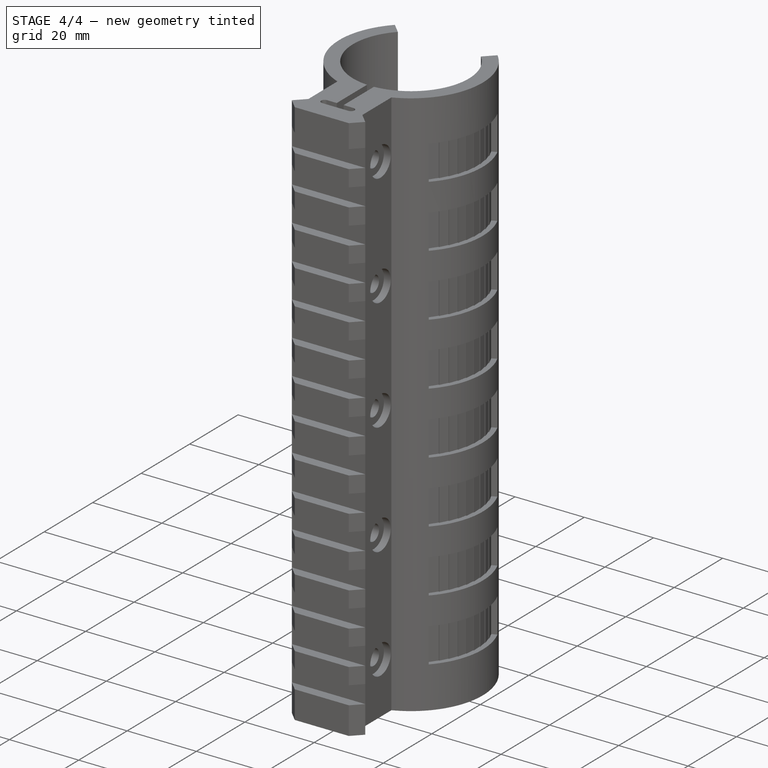
[diagram: stage 4 of 4 — iso view after this stage's code; geometry added in this stage tinted green]
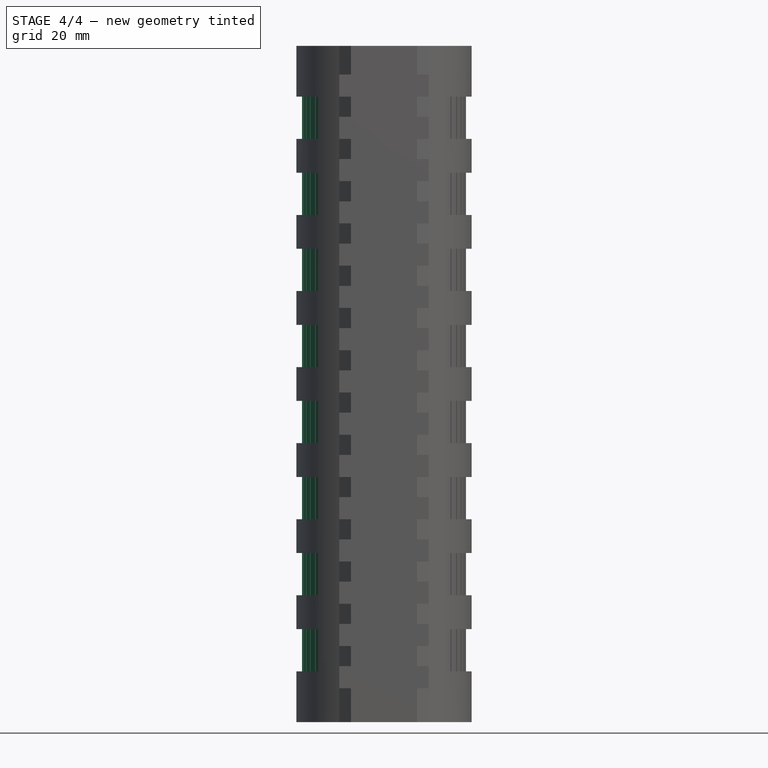
[diagram: stage 4 of 4 — front view after this stage's code; geometry added in this stage tinted green]
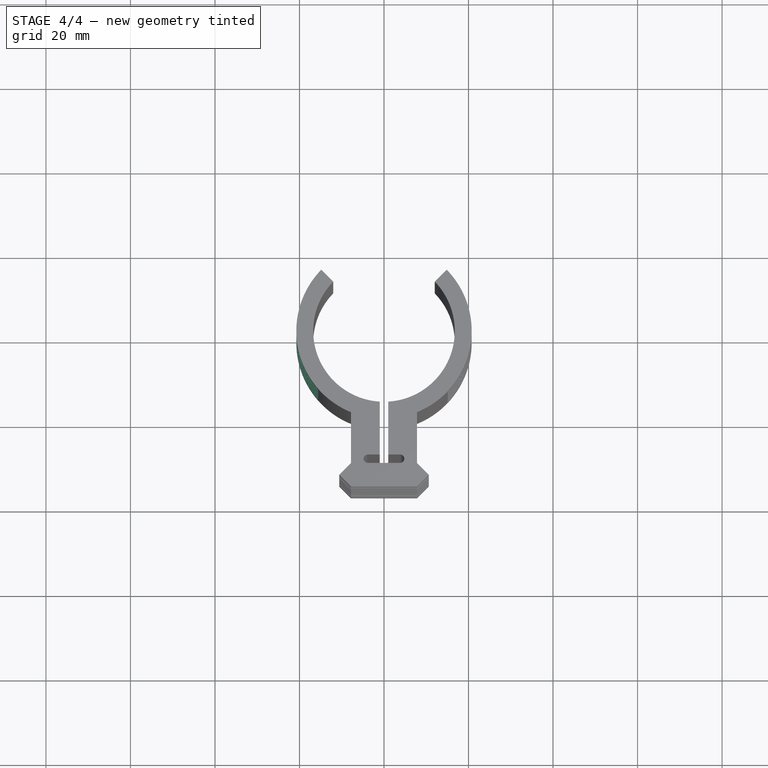
[diagram: stage 4 of 4 — top view after this stage's code; geometry added in this stage tinted green]
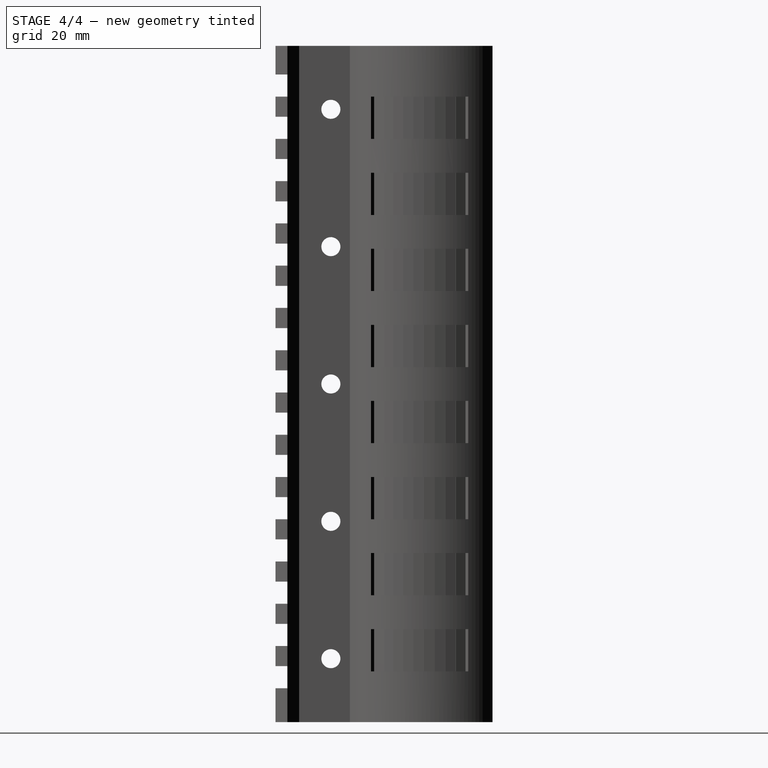
[diagram: stage 4 of 4 — right view after this stage's code; geometry added in this stage tinted green]
FEATURE [PartDesign::Plane] DatumPlane001
  AttachmentOffset = pos=(0,0,0) rot=(0,1,0;0.907571rad)
  Length = 95.8013
  MapMode = 2
  Placement = pos=(0,0,0) rot=(-0.94691,0.227333,-0.227333;1.62532rad)
  ResizeMode = 0
  Support = -> [DatumPlane]
  Width = 208.182
FEATURE [Sketcher::SketchObject] Sketch007
  ExternalGeometry = -> [PolarPattern]
  FullyConstrained = true
  MapMode = 5
  Placement = pos=(0,0,0) rot=(-0.94691,0.227333,-0.227333;1.62532rad)
  Support = -> [DatumPlane001]
  expr: Constraints[108] = Spreadsheet.B24
  expr: Constraints[8] = Spreadsheet.B22
  expr: Constraints[9] = Spreadsheet.B23
  sketch-geometry (39):
    g0: LineSegment StartX=-21.75 StartY=-12 StartZ=0 EndX=-19.25 EndY=-12 EndZ=0
    g1: LineSegment StartX=-19.25 StartY=-12 StartZ=0 EndX=-19.25 EndY=-22 EndZ=0
    g2: LineSegment StartX=-19.25 StartY=-22 StartZ=0 EndX=-21.75 EndY=-22 EndZ=0
    g3: LineSegment StartX=-21.75 StartY=-22 StartZ=0 EndX=-21.75 EndY=-12 EndZ=0
    g4: LineSegment StartX=-19.25 StartY=-30 StartZ=0 EndX=-21.75 EndY=-30 EndZ=0
    g5: LineSegment StartX=-21.75 StartY=-30 StartZ=0 EndX=-21.75 EndY=-40 EndZ=0
    g6: LineSegment StartX=-21.75 StartY=-40 StartZ=0 EndX=-19.25 EndY=-40 EndZ=0
    g7: LineSegment StartX=-19.25 StartY=-40 StartZ=0 EndX=-19.25 EndY=-30 EndZ=0
    g8: LineSegment StartX=-19.25 StartY=-12 StartZ=0 EndX=-19.25 EndY=-30 EndZ=0
    g9: LineSegment StartX=-19.25 StartY=-48 StartZ=0 EndX=-21.75 EndY=-48 EndZ=0
    g10: LineSegment StartX=-21.75 StartY=-48 StartZ=0 EndX=-21.75 EndY=-58 EndZ=0
    g11: LineSegment StartX=-21.75 StartY=-58 StartZ=0 EndX=-19.25 EndY=-58 EndZ=0
    g12: LineSegment StartX=-19.25 StartY=-58 StartZ=0 EndX=-19.25 EndY=-48 EndZ=0
    g13: LineSegment StartX=-19.25 StartY=-30 StartZ=0 EndX=-19.25 EndY=-48 EndZ=0
    g14: LineSegment StartX=-19.25 StartY=-66 StartZ=0 EndX=-21.75 EndY=-66 EndZ=0
    g15: LineSegment StartX=-21.75 StartY=-66 StartZ=0 EndX=-21.75 EndY=-76 EndZ=0
    g16: LineSegment StartX=-21.75 StartY=-76 StartZ=0 EndX=-19.25 EndY=-76 EndZ=0
    g17: LineSegment StartX=-19.25 StartY=-76 StartZ=0 EndX=-19.25 EndY=-66 EndZ=0
    g18: LineSegment StartX=-19.25 StartY=-48 StartZ=0 EndX=-19.25 EndY=-66 EndZ=0
    g19: LineSegment StartX=-19.25 StartY=-84 StartZ=0 EndX=-21.75 EndY=-84 EndZ=0
    g20: LineSegment StartX=-21.75 StartY=-84 StartZ=0 EndX=-21.75 EndY=-94 EndZ=0
    g21: LineSegment StartX=-21.75 StartY=-94 StartZ=0 EndX=-19.25 EndY=-94 EndZ=0
    g22: LineSegment StartX=-19.25 StartY=-94 StartZ=0 EndX=-19.25 EndY=-84 EndZ=0
    g23: LineSegment StartX=-19.25 StartY=-66 StartZ=0 EndX=-19.25 EndY=-84 EndZ=0
    g24: LineSegment StartX=-19.25 StartY=-102 StartZ=0 EndX=-21.75 EndY=-102 EndZ=0
    g25: LineSegment StartX=-21.75 StartY=-102 StartZ=0 EndX=-21.75 EndY=-112 EndZ=0
    g26: LineSegment StartX=-21.75 StartY=-112 StartZ=0 EndX=-19.25 EndY=-112 EndZ=0
    g27: LineSegment StartX=-19.25 StartY=-112 StartZ=0 EndX=-19.25 EndY=-102 EndZ=0
    g28: LineSegment StartX=-19.25 StartY=-84 StartZ=0 EndX=-19.25 EndY=-102 EndZ=0
    g29: LineSegment StartX=-19.25 StartY=-120 StartZ=0 EndX=-21.75 EndY=-120 EndZ=0
    g30: LineSegment StartX=-21.75 StartY=-120 StartZ=0 EndX=-21.75 EndY=-130 EndZ=0
    g31: LineSegment StartX=-21.75 StartY=-130 StartZ=0 EndX=-19.25 EndY=-130 EndZ=0
    g32: LineSegment StartX=-19.25 StartY=-130 StartZ=0 EndX=-19.25 EndY=-120 EndZ=0
    g33: LineSegment StartX=-19.25 StartY=-102 StartZ=0 EndX=-19.25 EndY=-120 EndZ=0
    g34: LineSegment StartX=-19.25 StartY=-138 StartZ=0 EndX=-21.75 EndY=-138 EndZ=0
    g35: LineSegment StartX=-21.75 StartY=-138 StartZ=0 EndX=-21.75 EndY=-148 EndZ=0
    g36: LineSegment StartX=-21.75 StartY=-148 StartZ=0 EndX=-19.25 EndY=-148 EndZ=0
    g37: LineSegment StartX=-19.25 StartY=-148 StartZ=0 EndX=-19.25 EndY=-138 EndZ=0
    g38: LineSegment StartX=-19.25 StartY=-120 StartZ=0 EndX=-19.25 EndY=-138 EndZ=0
  constraints (110):
    c: Coincident(g0,g1)
    c: Coincident(g1,g2)
    c: Coincident(g2,g3)
    c: Coincident(g3,g0)
    c: Horizontal(g0)
    c: Horizontal(g2)
    c: Vertical(g1)
    c: Vertical(g3)
    c: DistanceX(g0,g0) = 2.5
    c: DistanceY(g1,g1) = 10
    c: Coincident(g4,g5)
    c: Coincident(g5,g6)
    c: Coincident(g6,g7)
    c: Coincident(g7,g4)
    c: Horizontal(g4)
    c: Horizontal(g6)
    c: Vertical(g5)
    c: Vertical(g7)
    c: Equal(g0,g4) = 2.5
    c: Equal(g1,g5) = 10
    c: Coincident(g4,g8)
    c: Distance(g8) = 18
    c: Angle(g8) = -1.5708
    c: Coincident(g9,g10)
    c: Coincident(g10,g11)
    c: Coincident(g11,g12)
    c: Coincident(g12,g9)
    c: Horizontal(g9)
    c: Horizontal(g11)
    c: Vertical(g10)
    c: Vertical(g12)
    c: Equal(g0,g9) = 2.5
    c: Equal(g1,g10) = 10
    c: Coincident(g4,g13)
    c: Coincident(g9,g13)
    c: Equal(g8,g13)
    c: Parallel(g13,g8)
    c: Coincident(g14,g15)
    c: Coincident(g15,g16)
    c: Coincident(g16,g17)
    c: Coincident(g17,g14)
    c: Horizontal(g14)
    c: Horizontal(g16)
    c: Vertical(g15)
    c: Vertical(g17)
    c: Equal(g0,g14) = 2.5
    c: Equal(g1,g15) = 10
    c: Coincident(g9,g18)
    c: Coincident(g14,g18)
    c: Equal(g8,g18)
    c: Parallel(g18,g8)
    c: Coincident(g19,g20)
    c: Coincident(g20,g21)
    c: Coincident(g21,g22)
    c: Coincident(g22,g19)
    c: Horizontal(g19)
    c: Horizontal(g21)
    c: Vertical(g20)
    c: Vertical(g22)
    c: Equal(g0,g19) = 2.5
    c: Equal(g1,g20) = 10
    c: Coincident(g14,g23)
    c: Coincident(g19,g23)
    c: Equal(g8,g23)
    c: Parallel(g23,g8)
    c: Coincident(g24,g25)
    c: Coincident(g25,g26)
    c: Coincident(g26,g27)
    c: Coincident(g27,g24)
    c: Horizontal(g24)
    c: Horizontal(g26)
    c: Vertical(g25)
    c: Vertical(g27)
    c: Equal(g0,g24) = 2.5
    c: Equal(g1,g25) = 10
    c: Coincident(g19,g28)
    c: Coincident(g24,g28)
    c: Equal(g8,g28)
    c: Parallel(g28,g8)
    c: Coincident(g29,g30)
    c: Coincident(g30,g31)
    c: Coincident(g31,g32)
    c: Coincident(g32,g29)
    c: Horizontal(g29)
    c: Horizontal(g31)
    c: Vertical(g30)
    c: Vertical(g32)
    c: Equal(g0,g29) = 2.5
    c: Equal(g1,g30) = 10
    c: Coincident(g24,g33)
    c: Coincident(g29,g33)
    c: Equal(g8,g33)
    c: Parallel(g33,g8)
    c: Coincident(g34,g35)
    c: Coincident(g35,g36)
    c: Coincident(g36,g37)
    c: Coincident(g37,g34)
    c: Horizontal(g34)
    c: Horizontal(g36)
    c: Vertical(g35)
    c: Vertical(g37)
    c: Equal(g0,g34) = 2.5
    c: Equal(g1,g35) = 10
    c: Coincident(g29,g38)
    c: Coincident(g34,g38)
    c: Equal(g8,g38)
    c: Parallel(g38,g8)
    c: DistanceX(g0,g-3) = 1
    c: DistanceY(g0,g-3) = 12
    c: Coincident(g8,g0)
FEATURE [PartDesign::Pocket] Pocket006
  BaseFeature = -> PolarPattern
  Direction = (-0.45399,-0.891007,2e-16)
  Length = 3
  Length2 = 5
  Profile = -> Sketch007
  ReferenceAxis = -> Sketch007 [N_Axis]
  Type = 0
FEATURE [PartDesign::PolarPattern] PolarPattern001
  Angle = 60
  Axis = -> Z_Axis
  BaseFeature = -> Pocket006
  Occurrences = 9
  Originals = -> [Pocket006]
FEATURE [PartDesign::Body] Body
  Group = -> [Sketch,Pad,Sketch001,Pocket,Sketch002,Pocket001,Sketch004,Pocket003,Sketch005,Pocket004,LinearPattern,DatumPlane,Sketch006,Pocket005,PolarPattern,DatumPlane001,Sketch007,Pocket006,PolarPattern001]
  Origin = -> Origin
  Tip = -> PolarPattern001
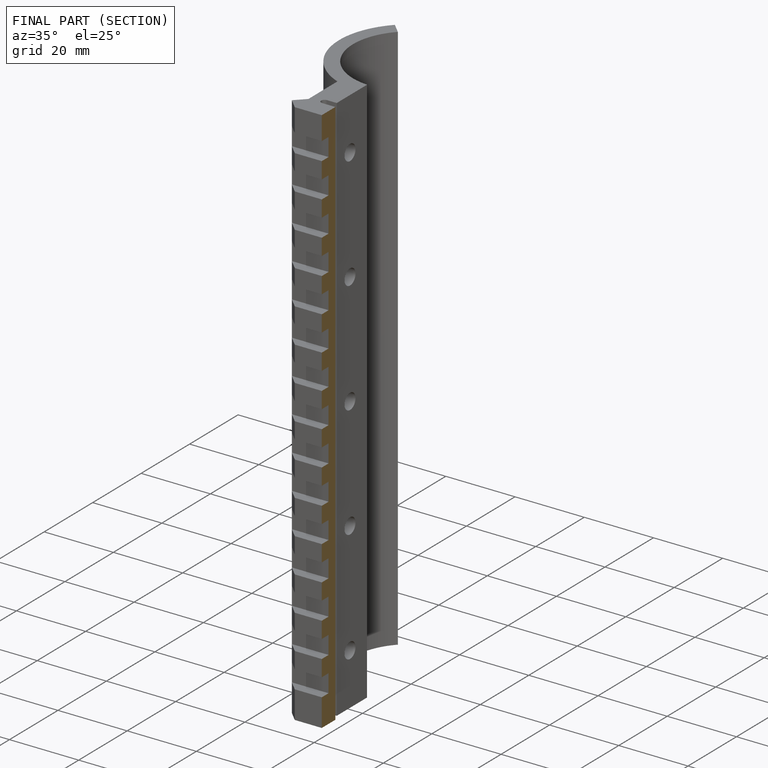
[diagram: finished part — half-section view (interior)]
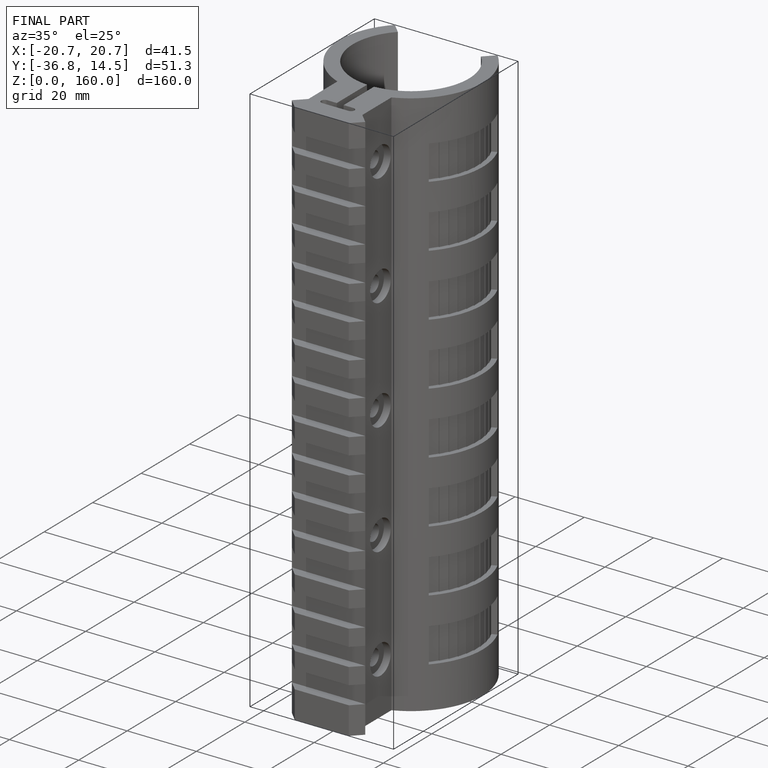
[diagram: finished part — iso view with bounding-box wireframe]
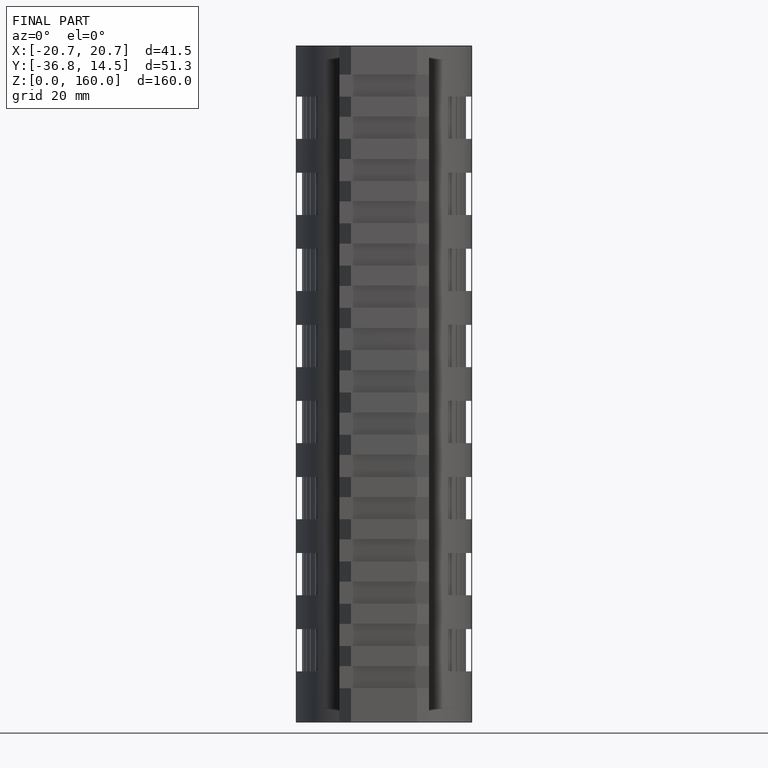
[diagram: finished part — front view with bounding-box wireframe]
